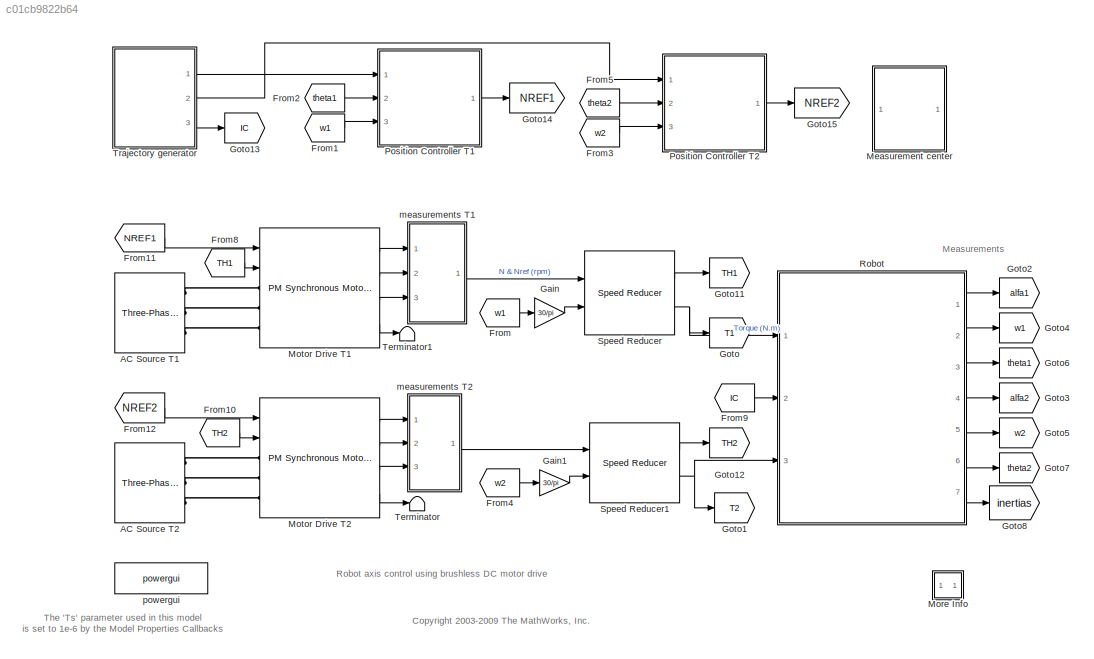
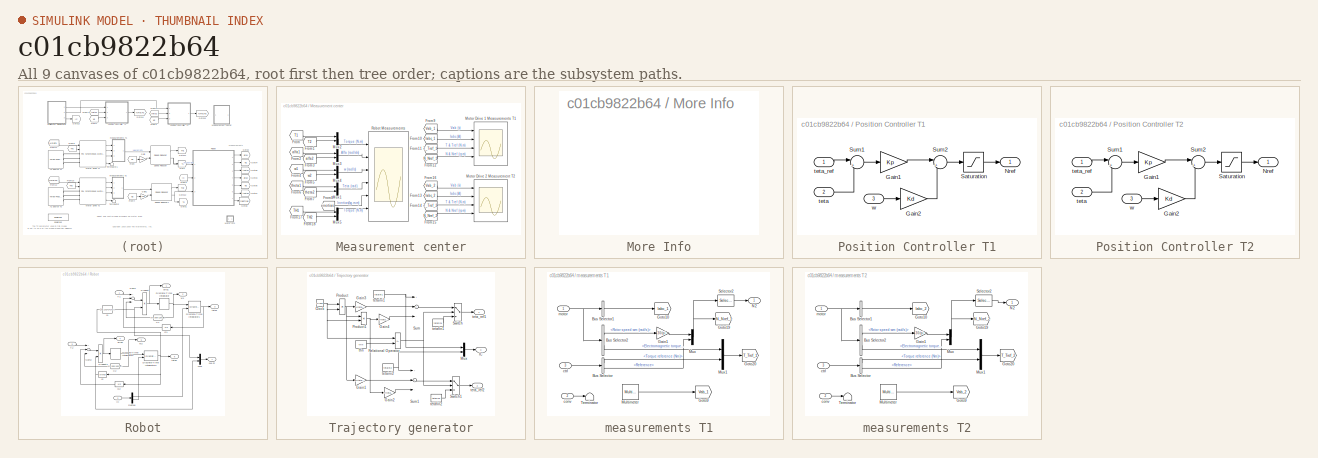
[diagram: thumbnail index - all 9 canvases of the model, root first then tree order]
MODEL slx_c01cb9822b64
KIND model
CONFIG AbsTol = auto
CONFIG EnableMultiTasking = on
CONFIG FixedStep = auto
CONFIG InitFcn = Ts=1e-6;
CONFIG MaxStep = auto
CONFIG MinStep = auto
CONFIG PreLoadFcn = Ts=1e-6;
CONFIG RelTol = 1e-3
CONFIG SampleTimeConstraint = Unconstrained
CONFIG Solver = FixedStepDiscrete
CONFIG SolverName = FixedStepDiscrete
CONFIG StartTime = 0.0
CONFIG StopTime = 2
BLOCK [Reference] AC Source T1  REF=powerlib/Electrical
Sources/Three-Phase Source
  Ports = [0, 0, 0, 0, 0, 0, 3]
  SourceBlock = powerlib/Electrical\nSources/Three-Phase Source
  SourceProductBaseCode = PS
  SourceProductName = Simscape Power Systems
  SourceType = Three-Phase Source
BLOCK [Reference] AC Source T2  REF=powerlib/Electrical
Sources/Three-Phase Source
  Ports = [0, 0, 0, 0, 0, 0, 3]
  SourceBlock = powerlib/Electrical\nSources/Three-Phase Source
  SourceProductBaseCode = PS
  SourceProductName = Simscape Power Systems
  SourceType = Three-Phase Source
BLOCK [From] From
  CloseFcn = tagdialog Close
  GotoTag = w1
  TagVisibility = global
BLOCK [From] From1
  CloseFcn = tagdialog Close
  GotoTag = w1
  TagVisibility = global
BLOCK [From] From10
  CloseFcn = tagdialog Close
  GotoTag = TH2
  TagVisibility = global
BLOCK [From] From11
  CloseFcn = tagdialog Close
  GotoTag = NREF1
  TagVisibility = global
BLOCK [From] From12
  CloseFcn = tagdialog Close
  GotoTag = NREF2
  TagVisibility = global
BLOCK [From] From2
  CloseFcn = tagdialog Close
  GotoTag = theta1
  TagVisibility = global
BLOCK [From] From3
  CloseFcn = tagdialog Close
  GotoTag = w2
  TagVisibility = global
BLOCK [From] From4
  CloseFcn = tagdialog Close
  GotoTag = w2
  TagVisibility = global
BLOCK [From] From5
  CloseFcn = tagdialog Close
  GotoTag = theta2
  TagVisibility = global
BLOCK [From] From8
  CloseFcn = tagdialog Close
  GotoTag = TH1
  TagVisibility = global
BLOCK [From] From9
  CloseFcn = tagdialog Close
  GotoTag = IC
  TagVisibility = global
BLOCK [Gain] Gain
  Gain = 30/pi
BLOCK [Gain] Gain1
  Gain = 30/pi
BLOCK [Goto] Goto
  GotoTag = T1
  TagVisibility = global
BLOCK [Goto] Goto1
  GotoTag = T2
  TagVisibility = global
BLOCK [Goto] Goto11
  GotoTag = TH1
  TagVisibility = global
BLOCK [Goto] Goto12
  GotoTag = TH2
  TagVisibility = global
BLOCK [Goto] Goto13
  GotoTag = IC
  TagVisibility = global
BLOCK [Goto] Goto14
  GotoTag = NREF1
  TagVisibility = global
BLOCK [Goto] Goto15
  GotoTag = NREF2
  TagVisibility = global
BLOCK [Goto] Goto2
  GotoTag = alfa1
  TagVisibility = global
BLOCK [Goto] Goto3
  GotoTag = alfa2
  TagVisibility = global
BLOCK [Goto] Goto4
  GotoTag = w1
  TagVisibility = global
BLOCK [Goto] Goto5
  GotoTag = w2
  TagVisibility = global
BLOCK [Goto] Goto6
  GotoTag = theta1
  TagVisibility = global
BLOCK [Goto] Goto7
  GotoTag = theta2
  TagVisibility = global
BLOCK [Goto] Goto8
  GotoTag = inertias
  TagVisibility = global
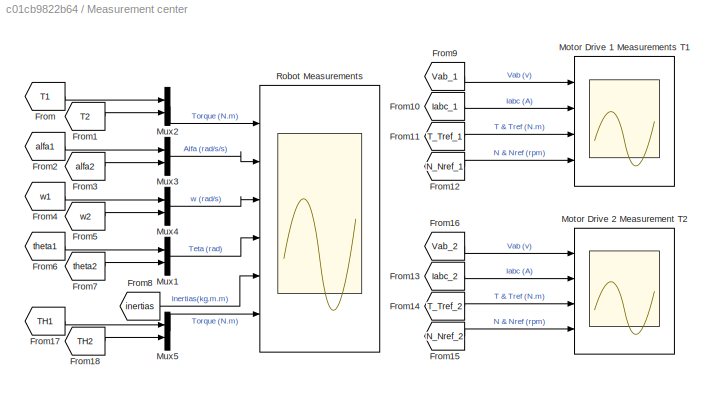
BLOCK [SubSystem] Measurement center
  Ports = []
  RequestExecContextInheritance = off
  Variant = off
BLOCK [From] Measurement center/From
  CloseFcn = tagdialog Close
  GotoTag = T1
  TagVisibility = global
BLOCK [From] Measurement center/From1
  CloseFcn = tagdialog Close
  GotoTag = T2
  TagVisibility = global
BLOCK [From] Measurement center/From10
  CloseFcn = tagdialog Close
  GotoTag = Iabc_1
  TagVisibility = global
BLOCK [From] Measurement center/From11
  CloseFcn = tagdialog Close
  GotoTag = T_Tref_1
  TagVisibility = global
BLOCK [From] Measurement center/From12
  CloseFcn = tagdialog Close
  GotoTag = N_Nref_1
  TagVisibility = global
BLOCK [From] Measurement center/From13
  CloseFcn = tagdialog Close
  GotoTag = Iabc_2
  TagVisibility = global
BLOCK [From] Measurement center/From14
  CloseFcn = tagdialog Close
  GotoTag = T_Tref_2
  TagVisibility = global
BLOCK [From] Measurement center/From15
  CloseFcn = tagdialog Close
  GotoTag = N_Nref_2
  TagVisibility = global
BLOCK [From] Measurement center/From16
  CloseFcn = tagdialog Close
  GotoTag = Vab_2
  TagVisibility = global
BLOCK [From] Measurement center/From17
  CloseFcn = tagdialog Close
  GotoTag = TH1
  TagVisibility = global
BLOCK [From] Measurement center/From18
  CloseFcn = tagdialog Close
  GotoTag = TH2
  TagVisibility = global
BLOCK [From] Measurement center/From2
  CloseFcn = tagdialog Close
  GotoTag = alfa1
  TagVisibility = global
BLOCK [From] Measurement center/From3
  CloseFcn = tagdialog Close
  GotoTag = alfa2
  TagVisibility = global
BLOCK [From] Measurement center/From4
  CloseFcn = tagdialog Close
  GotoTag = w1
  TagVisibility = global
BLOCK [From] Measurement center/From5
  CloseFcn = tagdialog Close
  GotoTag = w2
  TagVisibility = global
BLOCK [From] Measurement center/From6
  CloseFcn = tagdialog Close
  GotoTag = theta1
  TagVisibility = global
BLOCK [From] Measurement center/From7
  CloseFcn = tagdialog Close
  GotoTag = theta2
  TagVisibility = global
BLOCK [From] Measurement center/From8
  CloseFcn = tagdialog Close
  GotoTag = inertias
  TagVisibility = global
BLOCK [From] Measurement center/From9
  CloseFcn = tagdialog Close
  GotoTag = Vab_1
  TagVisibility = global
BLOCK [Scope] Measurement center/Motor Drive 1 Measurements T1
  NumInputPorts = 4
  Ports = [4]
  ScopeSpecificationString = Simulink.scopes.TimeScopeBlockCfg('CurrentConfiguration', extmgr.ConfigurationSet(extmgr.Configuration('Core','General UI',true,'FigureColor',[0.156862745098039 0.156862745098039 0.156862745098039]),extmgr.Configuration('Core','Source UI',true),extmgr.Configuration('Sources','WiredSimulink',true,'DataLogging',true,'DataLoggingVariableName','drive','DataLoggingSaveFormat','StructureWithTime','DataL...<+3905ch>
BLOCK [Scope] Measurement center/Motor Drive 2 Measurement T2
  NumInputPorts = 4
  Ports = [4]
  ScopeSpecificationString = Simulink.scopes.TimeScopeBlockCfg('CurrentConfiguration', extmgr.ConfigurationSet(extmgr.Configuration('Core','General UI',true,'FigureColor',[0.156862745098039 0.156862745098039 0.156862745098039]),extmgr.Configuration('Core','Source UI',true),extmgr.Configuration('Sources','WiredSimulink',true,'DataLogging',true,'DataLoggingVariableName','drive1','DataLoggingSaveFormat','StructureWithTime','Data...<+3916ch>
BLOCK [Mux] Measurement center/Mux1
  DisplayOption = bar
  Inputs = 2
  Ports = [2, 1]
BLOCK [Mux] Measurement center/Mux2
  DisplayOption = bar
  Inputs = 2
  Ports = [2, 1]
BLOCK [Mux] Measurement center/Mux3
  DisplayOption = bar
  Inputs = 2
  Ports = [2, 1]
BLOCK [Mux] Measurement center/Mux4
  DisplayOption = bar
  Inputs = 2
  Ports = [2, 1]
BLOCK [Mux] Measurement center/Mux5
  DisplayOption = bar
  Inputs = 2
  Ports = [2, 1]
BLOCK [Scope] Measurement center/Robot Measurements
  NumInputPorts = 6
  Ports = [6]
  ScopeSpecificationString = Simulink.scopes.TimeScopeBlockCfg('CurrentConfiguration', extmgr.ConfigurationSet(extmgr.Configuration('Core','General UI',true,'FigureColor',[0.156862745098039 0.156862745098039 0.156862745098039]),extmgr.Configuration('Core','Source UI',true),extmgr.Configuration('Sources','WiredSimulink',true,'DataLogging',true,'DataLoggingVariableName','robot','DataLoggingSaveFormat','StructureWithTime','DataL...<+6667ch>
BLOCK [SubSystem] More Info
  OpenFcn = docsearch('"Robot axis control using brushless DC motor drive"')
  Ports = []
  RequestExecContextInheritance = off
  Variant = off
BLOCK [Reference] Motor Drive T1  REF=electricdrivelib/AC drives/PM Synchronous Motor Drive
  Ports = [2, 4, 0, 0, 0, 3]
  SourceBlock = electricdrivelib/AC drives/PM Synchronous Motor Drive
  SourceProductBaseCode = PS
  SourceProductName = Simscape Power Systems
  SourceType = PM Synchronous Motor Drive
BLOCK [Reference] Motor Drive T2  REF=electricdrivelib/AC drives/PM Synchronous Motor Drive
  Ports = [2, 4, 0, 0, 0, 3]
  SourceBlock = electricdrivelib/AC drives/PM Synchronous Motor Drive
  SourceProductBaseCode = PS
  SourceProductName = Simscape Power Systems
  SourceType = PM Synchronous Motor Drive
BLOCK [SubSystem] Position Controller T1
  Ports = [3, 1]
  RequestExecContextInheritance = off
  Variant = off
BLOCK [Gain] Position Controller T1/Gain1
  Gain = Kp
BLOCK [Gain] Position Controller T1/Gain2
  Gain = Kd
BLOCK [Outport] Position Controller T1/Nref
  IconDisplay = Port number
BLOCK [Saturate] Position Controller T1/Saturation
  InputPortMap = u0
  LowerLimit = -2200
  Ports = [1, 1]
  UpperLimit = 2200
BLOCK [Sum] Position Controller T1/Sum1
  IconShape = round
  InputSameDT = off
  Inputs = |+-
  OutDataTypeStr = Inherit: Inherit via internal rule
  Ports = [2, 1]
BLOCK [Sum] Position Controller T1/Sum2
  IconShape = round
  InputSameDT = off
  Inputs = |++
  OutDataTypeStr = Inherit: Inherit via internal rule
  Ports = [2, 1]
BLOCK [Inport] Position Controller T1/teta
  IconDisplay = Port number
  Port = 2
BLOCK [Inport] Position Controller T1/teta_ref
  IconDisplay = Port number
BLOCK [Inport] Position Controller T1/w
  IconDisplay = Port number
  Port = 3
BLOCK [SubSystem] Position Controller T2
  Ports = [3, 1]
  RequestExecContextInheritance = off
  Variant = off
BLOCK [Gain] Position Controller T2/Gain1
  Gain = Kp
BLOCK [Gain] Position Controller T2/Gain2
  Gain = Kd
BLOCK [Outport] Position Controller T2/Nref
  IconDisplay = Port number
BLOCK [Saturate] Position Controller T2/Saturation
  InputPortMap = u0
  LowerLimit = -2200
  Ports = [1, 1]
  UpperLimit = 2200
BLOCK [Sum] Position Controller T2/Sum1
  IconShape = round
  InputSameDT = off
  Inputs = |+-
  OutDataTypeStr = Inherit: Inherit via internal rule
  Ports = [2, 1]
BLOCK [Sum] Position Controller T2/Sum2
  IconShape = round
  InputSameDT = off
  Inputs = |++
  OutDataTypeStr = Inherit: Inherit via internal rule
  Ports = [2, 1]
BLOCK [Inport] Position Controller T2/teta
  IconDisplay = Port number
  Port = 2
BLOCK [Inport] Position Controller T2/teta_ref
  IconDisplay = Port number
BLOCK [Inport] Position Controller T2/w
  IconDisplay = Port number
  Port = 3
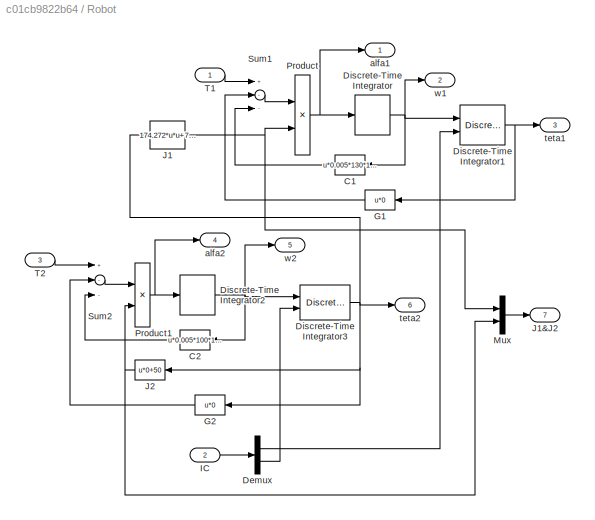
BLOCK [SubSystem] Robot
  Ports = [3, 7]
  RequestExecContextInheritance = off
  Variant = off
BLOCK [Fcn] Robot/C1
  Expr = u*0.005*130*130
BLOCK [Fcn] Robot/C2
  Expr = u*0.005*100*100
BLOCK [Demux] Robot/Demux
  Outputs = 2
  Ports = [1, 2]
BLOCK [DiscreteIntegrator] Robot/Discrete-Time Integrator
  ICPrevOutput = DiscIntNeverNeededParam
  ICPrevScaledInput = DiscIntNeverNeededParam
  Ports = [1, 1]
  SampleTime = Ts
BLOCK [DiscreteIntegrator] Robot/Discrete-Time Integrator1
  ICPrevOutput = DiscIntNeverNeededParam
  ICPrevScaledInput = DiscIntNeverNeededParam
  InitialConditionSource = external
  Ports = [2, 1]
  SampleTime = Ts
BLOCK [DiscreteIntegrator] Robot/Discrete-Time Integrator2
  ICPrevOutput = DiscIntNeverNeededParam
  ICPrevScaledInput = DiscIntNeverNeededParam
  Ports = [1, 1]
  SampleTime = Ts
BLOCK [DiscreteIntegrator] Robot/Discrete-Time Integrator3
  ICPrevOutput = DiscIntNeverNeededParam
  ICPrevScaledInput = DiscIntNeverNeededParam
  InitialConditionSource = external
  Ports = [2, 1]
  SampleTime = Ts
BLOCK [Fcn] Robot/G1
  Expr = u*0
BLOCK [Fcn] Robot/G2
  Expr = u*0
BLOCK [Inport] Robot/IC
  IconDisplay = Port number
  Port = 2
BLOCK [Fcn] Robot/J1
  Expr = 174.272*u*u+79.578*u+170
BLOCK [Outport] Robot/J1&J2
  IconDisplay = Port number
  Port = 7
BLOCK [Fcn] Robot/J2
  Expr = u*0+50
BLOCK [Mux] Robot/Mux
  DisplayOption = bar
  Inputs = 2
  Ports = [2, 1]
BLOCK [Product] Robot/Product
  InputSameDT = off
  Inputs = */
  Ports = [2, 1]
  RndMeth = Floor
BLOCK [Product] Robot/Product1
  InputSameDT = off
  Inputs = */
  Ports = [2, 1]
  RndMeth = Floor
BLOCK [Sum] Robot/Sum1
  InputSameDT = off
  Inputs = +--
  OutDataTypeStr = Inherit: Inherit via internal rule
  Ports = [3, 1]
BLOCK [Sum] Robot/Sum2
  InputSameDT = off
  Inputs = +--
  OutDataTypeStr = Inherit: Inherit via internal rule
  Ports = [3, 1]
BLOCK [Inport] Robot/T1
  IconDisplay = Port number
BLOCK [Inport] Robot/T2
  IconDisplay = Port number
  Port = 3
BLOCK [Outport] Robot/alfa1
  IconDisplay = Port number
BLOCK [Outport] Robot/alfa2
  IconDisplay = Port number
  Port = 4
BLOCK [Outport] Robot/teta1
  IconDisplay = Port number
  Port = 3
BLOCK [Outport] Robot/teta2
  IconDisplay = Port number
  Port = 6
BLOCK [Outport] Robot/w1
  IconDisplay = Port number
  Port = 2
BLOCK [Outport] Robot/w2
  IconDisplay = Port number
  Port = 5
BLOCK [Reference] Speed Reducer  REF=electricdrivelib/Shafts and speed reducers/Speed Reducer
  Ports = [2, 2]
  SourceBlock = electricdrivelib/Shafts and speed reducers/Speed Reducer
  SourceProductBaseCode = PS
  SourceProductName = Simscape Power Systems
  SourceType = Speed Reducer
BLOCK [Reference] Speed Reducer1  REF=electricdrivelib/Shafts and speed reducers/Speed Reducer
  Ports = [2, 2]
  SourceBlock = electricdrivelib/Shafts and speed reducers/Speed Reducer
  SourceProductBaseCode = PS
  SourceProductName = Simscape Power Systems
  SourceType = Speed Reducer
BLOCK [Terminator] Terminator
BLOCK [Terminator] Terminator1
BLOCK [SubSystem] Trajectory generator
  Ports = [0, 3]
  RequestExecContextInheritance = off
  Variant = off
BLOCK [Clock] Trajectory generator/Clock
  Decimation = 1
BLOCK [Gain] Trajectory generator/Gain1
  Gain = 3*(tetafin2-tetaini2)/tfin/tfin
BLOCK [Gain] Trajectory generator/Gain2
  Gain = 2*(tetafin2-tetaini2)/tfin/tfin/tfin
BLOCK [Gain] Trajectory generator/Gain3
  Gain = 3*(tetafin1-tetaini1)/tfin/tfin
BLOCK [Gain] Trajectory generator/Gain4
  Gain = 2*(tetafin1-tetaini1)/tfin/tfin/tfin
BLOCK [Outport] Trajectory generator/IC
  IconDisplay = Port number
  Port = 3
BLOCK [Mux] Trajectory generator/Mux
  DisplayOption = bar
  Inputs = 2
  Ports = [2, 1]
BLOCK [Product] Trajectory generator/Product
  InputSameDT = off
  Ports = [2, 1]
  RndMeth = Floor
BLOCK [Product] Trajectory generator/Product1
  InputSameDT = off
  Ports = [2, 1]
  RndMeth = Floor
BLOCK [RelationalOperator] Trajectory generator/Relational Operator
  InputSameDT = off
  Operator = <=
  Ports = [2, 1]
BLOCK [Sum] Trajectory generator/Sum
  InputSameDT = off
  Inputs = ++-
  OutDataTypeStr = Inherit: Inherit via internal rule
  Ports = [3, 1]
BLOCK [Sum] Trajectory generator/Sum1
  InputSameDT = off
  Inputs = ++-
  OutDataTypeStr = Inherit: Inherit via internal rule
  Ports = [3, 1]
BLOCK [Switch] Trajectory generator/Switch
  InputSameDT = off
  Threshold = 0.5
BLOCK [Switch] Trajectory generator/Switch1
  InputSameDT = off
  Threshold = 0.5
BLOCK [Outport] Trajectory generator/teta_ref1
  IconDisplay = Port number
BLOCK [Outport] Trajectory generator/teta_ref2
  IconDisplay = Port number
  Port = 2
BLOCK [Constant] Trajectory generator/tetafin1
  Value = tetafin1
BLOCK [Constant] Trajectory generator/tetafin2
  Value = tetafin2
BLOCK [Constant] Trajectory generator/tetaini1
  Value = tetaini1
BLOCK [Constant] Trajectory generator/tetaini2
  Value = tetaini2
BLOCK [Constant] Trajectory generator/tfin
  Value = tfin
BLOCK [SubSystem] measurements T1
  Ports = [3, 1]
  RequestExecContextInheritance = off
  Variant = off
BLOCK [BusSelector] measurements T1/Bus Selector
  OutputAsBus = off
  OutputSignals = Torque reference (Nm),Reference
  Ports = [1, 2]
BLOCK [BusSelector] measurements T1/Bus Selector1
  OutputAsBus = on
  OutputSignals = Stator current is_a (A),Stator current is_b (A),Stator current is_c (A)
  Ports = [1, 1]
BLOCK [BusSelector] measurements T1/Bus Selector2
  OutputAsBus = off
  OutputSignals = Rotor speed wm (rad/s),Electromagnetic torque Te (N*m)
  Ports = [1, 2]
BLOCK [Gain] measurements T1/Gain1
  Gain = 30/pi
BLOCK [Goto] measurements T1/Goto10
  GotoTag = Iabc_1
  TagVisibility = global
BLOCK [Goto] measurements T1/Goto19
  GotoTag = N_Nref_1
  TagVisibility = global
BLOCK [Goto] measurements T1/Goto20
  GotoTag = T_Tref_1
  TagVisibility = global
BLOCK [Goto] measurements T1/Goto9
  GotoTag = Vab_1
  TagVisibility = global
BLOCK [Reference] measurements T1/Multimeter  REF=powerlib/Measurements/Multimeter
  Ports = [0, 1]
  SourceBlock = powerlib/Measurements/Multimeter
  SourceProductBaseCode = PS
  SourceProductName = Simscape Power Systems
  SourceType = MultimeterPSB
BLOCK [Mux] measurements T1/Mux
  DisplayOption = bar
  Inputs = 2
  Ports = [2, 1]
BLOCK [Mux] measurements T1/Mux1
  DisplayOption = bar
  Inputs = 2
  Ports = [2, 1]
BLOCK [Outport] measurements T1/N2
  IconDisplay = Port number
BLOCK [Selector] measurements T1/Selector2
  IndexOptions = Index vector (dialog)
  Indices = 1
  InputPortWidth = 2
  OutputSizes = 1
  Ports = [1, 1]
BLOCK [Terminator] measurements T1/Terminator
BLOCK [Inport] measurements T1/conv
  IconDisplay = Port number
  Port = 2
BLOCK [Inport] measurements T1/ctrl
  IconDisplay = Port number
  Port = 3
BLOCK [Inport] measurements T1/motor
  IconDisplay = Port number
BLOCK [SubSystem] measurements T2
  Ports = [3, 1]
  RequestExecContextInheritance = off
  Variant = off
BLOCK [BusSelector] measurements T2/Bus Selector
  OutputAsBus = off
  OutputSignals = Torque reference (Nm),Reference
  Ports = [1, 2]
BLOCK [BusSelector] measurements T2/Bus Selector1
  OutputAsBus = on
  OutputSignals = Stator current is_a (A),Stator current is_b (A),Stator current is_c (A)
  Ports = [1, 1]
BLOCK [BusSelector] measurements T2/Bus Selector2
  OutputAsBus = off
  OutputSignals = Rotor speed wm (rad/s),Electromagnetic torque Te (N*m)
  Ports = [1, 2]
BLOCK [Gain] measurements T2/Gain1
  Gain = 30/pi
BLOCK [Goto] measurements T2/Goto10
  GotoTag = Iabc_2
  TagVisibility = global
BLOCK [Goto] measurements T2/Goto19
  GotoTag = N_Nref_2
  TagVisibility = global
BLOCK [Goto] measurements T2/Goto20
  GotoTag = T_Tref_2
  TagVisibility = global
BLOCK [Goto] measurements T2/Goto9
  GotoTag = Vab_2
  TagVisibility = global
BLOCK [Reference] measurements T2/Multimeter  REF=powerlib/Measurements/Multimeter
  Ports = [0, 1]
  SourceBlock = powerlib/Measurements/Multimeter
  SourceProductBaseCode = PS
  SourceProductName = Simscape Power Systems
  SourceType = MultimeterPSB
BLOCK [Mux] measurements T2/Mux
  DisplayOption = bar
  Inputs = 2
  Ports = [2, 1]
BLOCK [Mux] measurements T2/Mux1
  DisplayOption = bar
  Inputs = 2
  Ports = [2, 1]
BLOCK [Outport] measurements T2/N2
  IconDisplay = Port number
BLOCK [Selector] measurements T2/Selector2
  IndexOptions = Index vector (dialog)
  Indices = 1
  InputPortWidth = 2
  OutputSizes = 1
  Ports = [1, 1]
BLOCK [Terminator] measurements T2/Terminator
BLOCK [Inport] measurements T2/conv
  IconDisplay = Port number
  Port = 2
BLOCK [Inport] measurements T2/ctrl
  IconDisplay = Port number
  Port = 3
BLOCK [Inport] measurements T2/motor
  IconDisplay = Port number
BLOCK [Reference] powergui  REF=powerlib/powergui
  Ports = []
  Priority = 2
  SourceBlock = powerlib/powergui
  SourceProductBaseCode = PS
  SourceProductName = Simscape Power Systems
  SourceType = PSB option menu block
ANNOTATION (root): <copyright redacted>
ANNOTATION (root): Measurements
ANNOTATION (root): Robot axis control using brushless DC motor drive
ANNOTATION (root): The 'Ts' parameter used in this model is set to 1e-6 by the Model Properties Callbacks
LINE From10:1 -> Motor Drive T2:2
LINE From11:1 -> Motor Drive T1:1
LINE From12:1 -> Motor Drive T2:1
LINE From1:1 -> Position Controller T1:3
LINE From2:1 -> Position Controller T1:2
LINE From3:1 -> Position Controller T2:3
LINE From4:1 -> Gain1:1
LINE From5:1 -> Position Controller T2:2
LINE From8:1 -> Motor Drive T1:2
LINE From9:1 -> Robot:2
LINE From:1 -> Gain:1
LINE Gain1:1 -> Speed Reducer1:2
LINE Gain:1 -> Speed Reducer:2
LINE Measurement center/From10:1 -> Measurement center/Motor Drive 1 Measurements T1:2
LINE Measurement center/From11:1 -> Measurement center/Motor Drive 1 Measurements T1:3
LINE Measurement center/From12:1 -> Measurement center/Motor Drive 1 Measurements T1:4
LINE Measurement center/From13:1 -> Measurement center/Motor Drive 2 Measurement T2:2
LINE Measurement center/From14:1 -> Measurement center/Motor Drive 2 Measurement T2:3
LINE Measurement center/From15:1 -> Measurement center/Motor Drive 2 Measurement T2:4
LINE Measurement center/From16:1 -> Measurement center/Motor Drive 2 Measurement T2:1
LINE Measurement center/From17:1 -> Measurement center/Mux5:1
LINE Measurement center/From18:1 -> Measurement center/Mux5:2
LINE Measurement center/From1:1 -> Measurement center/Mux2:2
LINE Measurement center/From2:1 -> Measurement center/Mux3:1
LINE Measurement center/From3:1 -> Measurement center/Mux3:2
LINE Measurement center/From4:1 -> Measurement center/Mux4:1
LINE Measurement center/From5:1 -> Measurement center/Mux4:2
LINE Measurement center/From6:1 -> Measurement center/Mux1:1
LINE Measurement center/From7:1 -> Measurement center/Mux1:2
LINE Measurement center/From8:1 -> Measurement center/Robot Measurements:5
LINE Measurement center/From9:1 -> Measurement center/Motor Drive 1 Measurements T1:1
LINE Measurement center/From:1 -> Measurement center/Mux2:1
LINE Measurement center/Mux1:1 -> Measurement center/Robot Measurements:4
LINE Measurement center/Mux2:1 -> Measurement center/Robot Measurements:1
LINE Measurement center/Mux3:1 -> Measurement center/Robot Measurements:2
LINE Measurement center/Mux4:1 -> Measurement center/Robot Measurements:3
LINE Measurement center/Mux5:1 -> Measurement center/Robot Measurements:6
LINE Motor Drive T1:1 -> measurements T1:1
LINE Motor Drive T1:2 -> measurements T1:2
LINE Motor Drive T1:3 -> measurements T1:3
LINE Motor Drive T1:4 -> Terminator1:1
LINE Motor Drive T2:1 -> measurements T2:1
LINE Motor Drive T2:2 -> measurements T2:2
LINE Motor Drive T2:3 -> measurements T2:3
LINE Motor Drive T2:4 -> Terminator:1
LINE Position Controller T1/Gain1:1 -> Position Controller T1/Sum2:1
LINE Position Controller T1/Gain2:1 -> Position Controller T1/Sum2:2
LINE Position Controller T1/Saturation:1 -> Position Controller T1/Nref:1
LINE Position Controller T1/Sum1:1 -> Position Controller T1/Gain1:1
LINE Position Controller T1/Sum2:1 -> Position Controller T1/Saturation:1
LINE Position Controller T1/teta:1 -> Position Controller T1/Sum1:2
LINE Position Controller T1/teta_ref:1 -> Position Controller T1/Sum1:1
LINE Position Controller T1/w:1 -> Position Controller T1/Gain2:1
LINE Position Controller T1:1 -> Goto14:1
LINE Position Controller T2/Gain1:1 -> Position Controller T2/Sum2:1
LINE Position Controller T2/Gain2:1 -> Position Controller T2/Sum2:2
LINE Position Controller T2/Saturation:1 -> Position Controller T2/Nref:1
LINE Position Controller T2/Sum1:1 -> Position Controller T2/Gain1:1
LINE Position Controller T2/Sum2:1 -> Position Controller T2/Saturation:1
LINE Position Controller T2/teta:1 -> Position Controller T2/Sum1:2
LINE Position Controller T2/teta_ref:1 -> Position Controller T2/Sum1:1
LINE Position Controller T2/w:1 -> Position Controller T2/Gain2:1
LINE Position Controller T2:1 -> Goto15:1
LINE Robot/C1:1 -> Robot/Sum1:3
LINE Robot/C2:1 -> Robot/Sum2:3
LINE Robot/Demux:1 -> Robot/Discrete-Time Integrator1:2
LINE Robot/Demux:2 -> Robot/Discrete-Time Integrator3:2
NET Robot/Discrete-Time Integrator1:1 -> Robot/G1:1, Robot/teta1:1
NET Robot/Discrete-Time Integrator2:1 -> Robot/C2:1, Robot/Discrete-Time Integrator3:1, Robot/w2:1
NET Robot/Discrete-Time Integrator3:1 -> Robot/G2:1, Robot/J1:1, Robot/J2:1, Robot/teta2:1
NET Robot/Discrete-Time Integrator:1 -> Robot/C1:1, Robot/Discrete-Time Integrator1:1, Robot/w1:1
LINE Robot/G1:1 -> Robot/Sum1:2
LINE Robot/G2:1 -> Robot/Sum2:2
LINE Robot/IC:1 -> Robot/Demux:1
NET Robot/J1:1 -> Robot/Mux:1, Robot/Product:2
NET Robot/J2:1 -> Robot/Mux:2, Robot/Product1:2
LINE Robot/Mux:1 -> Robot/J1&J2:1
NET Robot/Product1:1 -> Robot/Discrete-Time Integrator2:1, Robot/alfa2:1
NET Robot/Product:1 -> Robot/Discrete-Time Integrator:1, Robot/alfa1:1
LINE Robot/Sum1:1 -> Robot/Product:1
LINE Robot/Sum2:1 -> Robot/Product1:1
LINE Robot/T1:1 -> Robot/Sum1:1
LINE Robot/T2:1 -> Robot/Sum2:1
LINE Robot:1 -> Goto2:1
LINE Robot:2 -> Goto4:1
LINE Robot:3 -> Goto6:1
LINE Robot:4 -> Goto3:1
LINE Robot:5 -> Goto5:1
LINE Robot:6 -> Goto7:1
LINE Robot:7 -> Goto8:1
LINE Speed Reducer1:1 -> Goto12:1
NET Speed Reducer1:2 -> Goto1:1, Robot:3
LINE Speed Reducer:1 -> Goto11:1
NET Speed Reducer:2 -> Goto:1, Robot:1
NET Trajectory generator/Clock:1 -> Trajectory generator/Product1:2, Trajectory generator/Product:1, Trajectory generator/Product:2, Trajectory generator/Relational Operator:1
LINE Trajectory generator/Gain1:1 -> Trajectory generator/Sum1:2
LINE Trajectory generator/Gain2:1 -> Trajectory generator/Sum1:3
LINE Trajectory generator/Gain3:1 -> Trajectory generator/Sum:2
LINE Trajectory generator/Gain4:1 -> Trajectory generator/Sum:3
LINE Trajectory generator/Mux:1 -> Trajectory generator/IC:1
NET Trajectory generator/Product1:1 -> Trajectory generator/Gain2:1, Trajectory generator/Gain4:1
NET Trajectory generator/Product:1 -> Trajectory generator/Gain1:1, Trajectory generator/Gain3:1, Trajectory generator/Product1:1
NET Trajectory generator/Relational Operator:1 -> Trajectory generator/Switch1:2, Trajectory generator/Switch:2
LINE Trajectory generator/Sum1:1 -> Trajectory generator/Switch1:1
LINE Trajectory generator/Sum:1 -> Trajectory generator/Switch:1
LINE Trajectory generator/Switch1:1 -> Trajectory generator/teta_ref2:1
LINE Trajectory generator/Switch:1 -> Trajectory generator/teta_ref1:1
LINE Trajectory generator/tetafin1:1 -> Trajectory generator/Switch:3
LINE Trajectory generator/tetafin2:1 -> Trajectory generator/Switch1:3
NET Trajectory generator/tetaini1:1 -> Trajectory generator/Mux:1, Trajectory generator/Sum:1
NET Trajectory generator/tetaini2:1 -> Trajectory generator/Mux:2, Trajectory generator/Sum1:1
LINE Trajectory generator/tfin:1 -> Trajectory generator/Relational Operator:2
LINE Trajectory generator:1 -> Position Controller T1:1
LINE Trajectory generator:2 -> Position Controller T2:1
LINE Trajectory generator:3 -> Goto13:1
LINE measurements T1/Bus Selector1:1 -> measurements T1/Goto10:1
LINE measurements T1/Bus Selector2:1 -> measurements T1/Gain1:1
LINE measurements T1/Bus Selector2:2 -> measurements T1/Mux1:1
LINE measurements T1/Bus Selector:1 -> measurements T1/Mux1:2
LINE measurements T1/Bus Selector:2 -> measurements T1/Mux:2
LINE measurements T1/Gain1:1 -> measurements T1/Mux:1
LINE measurements T1/Multimeter:1 -> measurements T1/Goto9:1
LINE measurements T1/Mux1:1 -> measurements T1/Goto20:1
NET measurements T1/Mux:1 -> measurements T1/Goto19:1, measurements T1/Selector2:1
LINE measurements T1/Selector2:1 -> measurements T1/N2:1
LINE measurements T1/conv:1 -> measurements T1/Terminator:1
LINE measurements T1/ctrl:1 -> measurements T1/Bus Selector:1
NET measurements T1/motor:1 -> measurements T1/Bus Selector1:1, measurements T1/Bus Selector2:1
LINE measurements T1:1 -> Speed Reducer:1
LINE measurements T2/Bus Selector1:1 -> measurements T2/Goto10:1
LINE measurements T2/Bus Selector2:1 -> measurements T2/Gain1:1
LINE measurements T2/Bus Selector2:2 -> measurements T2/Mux1:1
LINE measurements T2/Bus Selector:1 -> measurements T2/Mux1:2
LINE measurements T2/Bus Selector:2 -> measurements T2/Mux:2
LINE measurements T2/Gain1:1 -> measurements T2/Mux:1
LINE measurements T2/Multimeter:1 -> measurements T2/Goto9:1
LINE measurements T2/Mux1:1 -> measurements T2/Goto20:1
NET measurements T2/Mux:1 -> measurements T2/Goto19:1, measurements T2/Selector2:1
LINE measurements T2/Selector2:1 -> measurements T2/N2:1
LINE measurements T2/conv:1 -> measurements T2/Terminator:1
LINE measurements T2/ctrl:1 -> measurements T2/Bus Selector:1
NET measurements T2/motor:1 -> measurements T2/Bus Selector1:1, measurements T2/Bus Selector2:1
LINE measurements T2:1 -> Speed Reducer1:1
PLINE AC Source T1:RConn1 -- Motor Drive T1:LConn1
PLINE AC Source T1:RConn2 -- Motor Drive T1:LConn2
PLINE AC Source T1:RConn3 -- Motor Drive T1:LConn3
PLINE AC Source T2:RConn1 -- Motor Drive T2:LConn1
PLINE AC Source T2:RConn2 -- Motor Drive T2:LConn2
PLINE AC Source T2:RConn3 -- Motor Drive T2:LConn3
note: NET lines group one-source signal fan-out (src -> all destinations, sorted); 1:1 wires keep LINE
